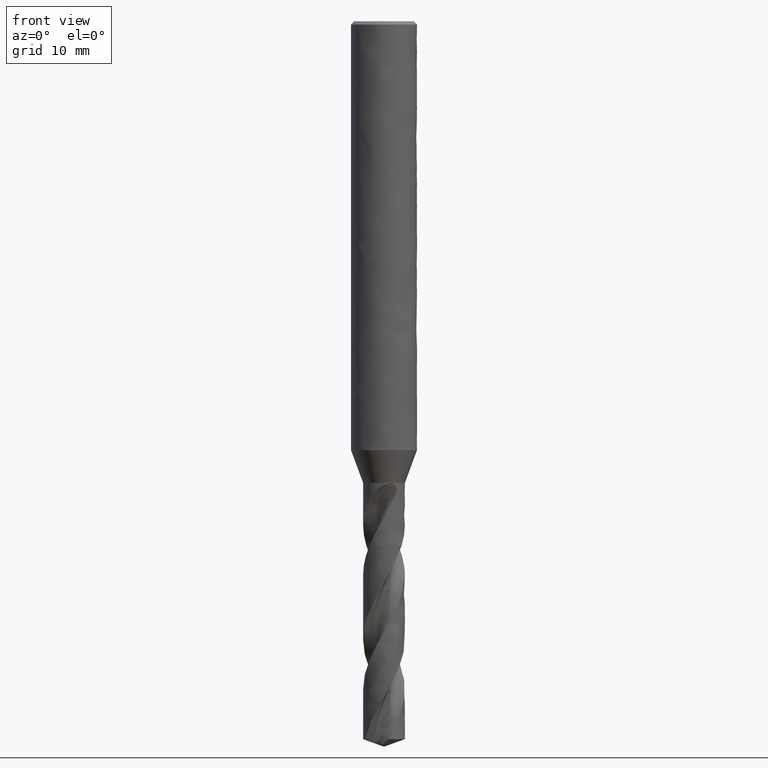
[diagram: clean part render]
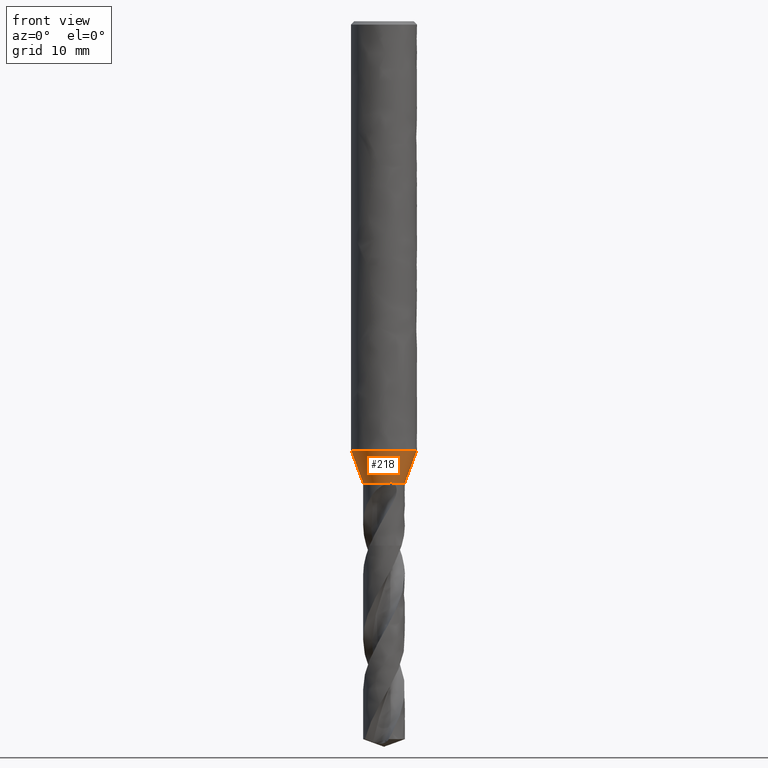
[diagram: same view with one face highlighted and labeled with its STEP entity id]
A machine part, front view. The second image highlights one B-rep face of the part: STEP entity #218.
In plain terms, the highlighted face is a freeform B-spline surface patch.
Its self-contained STEP definition (entity closure, byte-faithful):
#75 = VERTEX_POINT('', #76);
#76 = CARTESIAN_POINT('', (0.494922740948212, -1.83440766474966, -42.));
#122 = EDGE_CURVE('', #75, #123, #125, .T.);
#123 = VERTEX_POINT('', #124);
#124 = CARTESIAN_POINT('', (-1.9, 2.68809972412844E-15, -42.));
#125 = CIRCLE('', #126, 1.9);
#126 = AXIS2_PLACEMENT_3D('', #127, #128, #129);
#127 = CARTESIAN_POINT('', (1.57474777179495E-31, 2.57175827820944E-15, -42.));
#128 = DIRECTION('', (3.74939945665464E-33, 6.12323399573677E-17, -1.));
#129 = DIRECTION('', (-1., 6.12323399573677E-17, 0.));
#218 = ADVANCED_FACE('', (#219), #330, .T.);
#219 = FACE_OUTER_BOUND('', #220, .T.);
#220 = EDGE_LOOP('', (#221, #238, #247, #262, #270, #285, #292, #300, #307, #308, #309, #324));
#221 = ORIENTED_EDGE('', *, *, #222, .T.);
#222 = EDGE_CURVE('', #223, #225, #227, .T.);
#223 = VERTEX_POINT('', #224);
#224 = CARTESIAN_POINT('', (0.635670708593593, -1.79834905507623, -41.98));
#225 = VERTEX_POINT('', #226);
#226 = CARTESIAN_POINT('', (0.745365079145062, -1.74769302189803, -42.));
#227 = B_SPLINE_CURVE_WITH_KNOTS('', 3, (#228, #229, #230, #231, #232, #233, #234, #235, #236, #237), .UNSPECIFIED., .F., .U., (4, 3, 3, 4), (0., 0.0586576889289968, 0.117221775274675, 0.123106550054975), .UNSPECIFIED.);
#228 = CARTESIAN_POINT('', (0.635670708596952, -1.79834905507505, -41.98));
#229 = CARTESIAN_POINT('', (0.654101082435071, -1.79182044317227, -41.9800355774309));
#230 = CARTESIAN_POINT('', (0.672346635086903, -1.78452358596314, -41.9813727747947));
#231 = CARTESIAN_POINT('', (0.689949424146824, -1.77652920687518, -41.9842941510548));
#232 = CARTESIAN_POINT('', (0.70752412368328, -1.76854758475989, -41.9872108655499));
#233 = CARTESIAN_POINT('', (0.72460673619677, -1.75979467376208, -41.9917477717402));
#234 = CARTESIAN_POINT('', (0.740580975019107, -1.75050907562229, -41.9980473701454));
#235 = CARTESIAN_POINT('', (0.742186136195895, -1.74957601822888, -41.9986803812643));
#236 = CARTESIAN_POINT('', (0.74378105565736, -1.74863721609244, -41.99933126351));
#237 = CARTESIAN_POINT('', (0.745365079145063, -1.74769302189803, -42.));
#238 = ORIENTED_EDGE('', *, *, #239, .F.);
#239 = EDGE_CURVE('', #240, #225, #242, .T.);
#240 = VERTEX_POINT('', #241);
#241 = CARTESIAN_POINT('', (-0.494922740948223, 1.83440766474966, -42.));
#242 = CIRCLE('', #243, 1.9);
#243 = AXIS2_PLACEMENT_3D('', #244, #245, #246);
#244 = CARTESIAN_POINT('', (1.57474777179495E-31, 2.57175827820944E-15, -42.));
#245 = DIRECTION('', (3.74939945665464E-33, 6.12323399573677E-17, -1.));
#246 = DIRECTION('', (-1., 6.12323399573677E-17, 0.));
#247 = ORIENTED_EDGE('', *, *, #248, .F.);
#248 = EDGE_CURVE('', #249, #240, #251, .T.);
#249 = VERTEX_POINT('', #250);
#250 = CARTESIAN_POINT('', (-0.634146499606388, 1.79888709781755, -41.98));
#251 = B_SPLINE_CURVE_WITH_KNOTS('', 3, (#252, #253, #254, #255, #256, #257, #258, #259, #260, #261), .UNSPECIFIED., .F., .U., (4, 3, 3, 4), (0., 0.0584420596017723, 0.116712689044244, 0.145532930977059), .UNSPECIFIED.);
#252 = CARTESIAN_POINT('', (-0.634146499598472, 1.79888709782034, -41.98));
#253 = CARTESIAN_POINT('', (-0.615769671248805, 1.80535146758131, -41.9800353727771));
#254 = CARTESIAN_POINT('', (-0.597103896777098, 1.81109864330133, -41.9813471421357));
#255 = CARTESIAN_POINT('', (-0.578431867504181, 1.81614845483603, -41.9836605539297));
#256 = CARTESIAN_POINT('', (-0.559814609554769, 1.82118345358004, -41.985967179711));
#257 = CARTESIAN_POINT('', (-0.541114101011705, 1.82554806648696, -41.9892769113395));
#258 = CARTESIAN_POINT('', (-0.52249931761983, 1.82929264825708, -41.9933686072035));
#259 = CARTESIAN_POINT('', (-0.513292577174193, 1.83114469196391, -41.9953923310905));
#260 = CARTESIAN_POINT('', (-0.504095724553767, 1.83284744238641, -41.9976100895736));
#261 = CARTESIAN_POINT('', (-0.494922740948231, 1.83440766474966, -42.));
#262 = ORIENTED_EDGE('', *, *, #263, .F.);
#263 = EDGE_CURVE('', #264, #249, #266, .T.);
#264 = VERTEX_POINT('', #265);
#265 = CARTESIAN_POINT('', (-0.635670708597736, 1.79834905507477, -41.98));
#266 = LINE('', #267, #268);
#267 = CARTESIAN_POINT('', (-0.635670708597736, 1.79834905507477, -41.98));
#268 = VECTOR('', #269, 0.00161638579626292);
#269 = DIRECTION('', (0.0015242089913482, 0.000538042742775913, 0.));
#270 = ORIENTED_EDGE('', *, *, #271, .T.);
#271 = EDGE_CURVE('', #264, #272, #274, .T.);
#272 = VERTEX_POINT('', #273);
#273 = CARTESIAN_POINT('', (-0.745365079145056, 1.74769302189804, -42.));
#274 = B_SPLINE_CURVE_WITH_KNOTS('', 3, (#275, #276, #277, #278, #279, #280, #281, #282, #283, #284), .UNSPECIFIED., .F., .U., (4, 3, 3, 4), (0., 0.058657688928997, 0.117221775274675, 0.123106550054705), .UNSPECIFIED.);
#275 = CARTESIAN_POINT('', (-0.635670708597201, 1.79834905507496, -41.98));
#276 = CARTESIAN_POINT('', (-0.654101082435317, 1.79182044317218, -41.9800355774309));
#277 = CARTESIAN_POINT('', (-0.672346635087147, 1.78452358596304, -41.9813727747947));
#278 = CARTESIAN_POINT('', (-0.689949424147062, 1.77652920687508, -41.9842941510549));
#279 = CARTESIAN_POINT('', (-0.707524123683512, 1.76854758475978, -41.98721086555));
#280 = CARTESIAN_POINT('', (-0.724606736196994, 1.75979467376196, -41.9917477717403));
#281 = CARTESIAN_POINT('', (-0.740580975019322, 1.75050907562217, -41.9980473701455));
#282 = CARTESIAN_POINT('', (-0.742186136196036, 1.7495760182288, -41.9986803812643));
#283 = CARTESIAN_POINT('', (-0.743781055657426, 1.7486372160924, -41.99933126351));
#284 = CARTESIAN_POINT('', (-0.745365079145056, 1.74769302189804, -42.));
#285 = ORIENTED_EDGE('', *, *, #286, .F.);
#286 = EDGE_CURVE('', #123, #272, #287, .T.);
#287 = CIRCLE('', #288, 1.9);
#288 = AXIS2_PLACEMENT_3D('', #289, #290, #291);
#289 = CARTESIAN_POINT('', (1.57474777179495E-31, 2.57175827820944E-15, -42.));
#290 = DIRECTION('', (3.74939945665464E-33, 6.12323399573677E-17, -1.));
#291 = DIRECTION('', (-1., 6.12323399573677E-17, 0.));
#292 = ORIENTED_EDGE('', *, *, #293, .F.);
#293 = EDGE_CURVE('', #294, #123, #296, .T.);
#294 = VERTEX_POINT('', #295);
#295 = CARTESIAN_POINT('', (-3., 2.57316662202846E-15, -39.023));
#296 = LINE('', #297, #298);
#297 = CARTESIAN_POINT('', (-3., 2.57316662202846E-15, -39.023));
#298 = VECTOR('', #299, 3.17372478327911);
#299 = DIRECTION('', (1.1, 1.14933102099979E-16, -2.977));
#300 = ORIENTED_EDGE('', *, *, #301, .T.);
#301 = EDGE_CURVE('', #294, #294, #302, .T.);
#302 = CIRCLE('', #303, 3.);
#303 = AXIS2_PLACEMENT_3D('', #304, #305, #306);
#304 = CARTESIAN_POINT('', (1.46312814997034E-31, 2.38946960215636E-15, -39.023));
#305 = DIRECTION('', (3.74939945665464E-33, 6.12323399573677E-17, -1.));
#306 = DIRECTION('', (-1., 6.12323399573677E-17, 0.));
#307 = ORIENTED_EDGE('', *, *, #293, .T.);
#308 = ORIENTED_EDGE('', *, *, #122, .F.);
#309 = ORIENTED_EDGE('', *, *, #310, .F.);
#310 = EDGE_CURVE('', #311, #75, #313, .T.);
#311 = VERTEX_POINT('', #312);
#312 = CARTESIAN_POINT('', (0.634146499610535, -1.79888709781608, -41.98));
#313 = B_SPLINE_CURVE_WITH_KNOTS('', 3, (#314, #315, #316, #317, #318, #319, #320, #321, #322, #323), .UNSPECIFIED., .F., .U., (4, 3, 3, 4), (0., 0.0584420596017718, 0.116712689044243, 0.145532930977061), .UNSPECIFIED.);
#314 = CARTESIAN_POINT('', (0.634146499598475, -1.79888709782034, -41.98));
#315 = CARTESIAN_POINT('', (0.615769671248808, -1.80535146758131, -41.9800353727771));
#316 = CARTESIAN_POINT('', (0.597103896777102, -1.81109864330133, -41.9813471421357));
#317 = CARTESIAN_POINT('', (0.578431867504186, -1.81614845483602, -41.9836605539297));
#318 = CARTESIAN_POINT('', (0.559814609554774, -1.82118345358004, -41.985967179711));
#319 = CARTESIAN_POINT('', (0.541114101011709, -1.82554806648695, -41.9892769113395));
#320 = CARTESIAN_POINT('', (0.522499317619835, -1.82929264825707, -41.9933686072035));
#321 = CARTESIAN_POINT('', (0.513292577174196, -1.83114469196391, -41.9953923310905));
#322 = CARTESIAN_POINT('', (0.50409572455377, -1.8328474423864, -41.9976100895736));
#323 = CARTESIAN_POINT('', (0.494922740948233, -1.83440766474965, -42.));
#324 = ORIENTED_EDGE('', *, *, #325, .F.);
#325 = EDGE_CURVE('', #223, #311, #326, .T.);
#326 = LINE('', #327, #328);
#327 = CARTESIAN_POINT('', (0.635670708593592, -1.79834905507623, -41.98));
#328 = VECTOR('', #329, 0.00161638578747001);
#329 = DIRECTION('', (-0.00152420898305683, -0.000538042739848699, 0.));
#330 = (
   BOUNDED_SURFACE ()
   B_SPLINE_SURFACE (2, 1, ((#331, #332), (#333, #334), (#335, #336), (#337, #338), (#339, #340), (#341, #342), (#343, #344), (#345, #346), (#347, #348)), .UNSPECIFIED., .T., .F., .U.)
   B_SPLINE_SURFACE_WITH_KNOTS ((3, 2, 2, 2, 3), (2, 2), (0., 0.25, 0.5, 0.75, 1.), (0., 1.), .UNSPECIFIED.)
   GEOMETRIC_REPRESENTATION_ITEM ()
   RATIONAL_B_SPLINE_SURFACE (((1., 1.), (0.707106781186548, 0.707106781186548), (1., 1.), (0.707106781186548, 0.707106781186548), (1., 1.), (0.707106781186548, 0.707106781186548), (1., 1.), (0.707106781186548, 0.707106781186548), (1., 1.)))
   REPRESENTATION_ITEM ('')
   SURFACE ()
);
#331 = CARTESIAN_POINT('', (-3., 2.57316662202846E-15, -39.023));
#332 = CARTESIAN_POINT('', (-1.9, 2.68809972412844E-15, -42.));
#333 = CARTESIAN_POINT('', (-3., 3., -39.023));
#334 = CARTESIAN_POINT('', (-1.9, 1.9, -42.));
#335 = CARTESIAN_POINT('', (1.23259516440783E-31, 3., -39.023));
#336 = CARTESIAN_POINT('', (1.4791141972894E-31, 1.9, -42.));
#337 = CARTESIAN_POINT('', (3., 3., -39.023));
#338 = CARTESIAN_POINT('', (1.9, 1.9, -42.));
#339 = CARTESIAN_POINT('', (3., 2.57316662202846E-15, -39.023));
#340 = CARTESIAN_POINT('', (1.9, 2.68809972412844E-15, -42.));
#341 = CARTESIAN_POINT('', (3., -3., -39.023));
#342 = CARTESIAN_POINT('', (1.9, -1.9, -42.));
#343 = CARTESIAN_POINT('', (3.67394039744206E-16, -3., -39.023));
#344 = CARTESIAN_POINT('', (2.32682891837997E-16, -1.9, -42.));
#345 = CARTESIAN_POINT('', (-3., -3., -39.023));
#346 = CARTESIAN_POINT('', (-1.9, -1.9, -42.));
#347 = CARTESIAN_POINT('', (-3., 2.57316662202846E-15, -39.023));
#348 = CARTESIAN_POINT('', (-1.9, 2.68809972412844E-15, -42.));